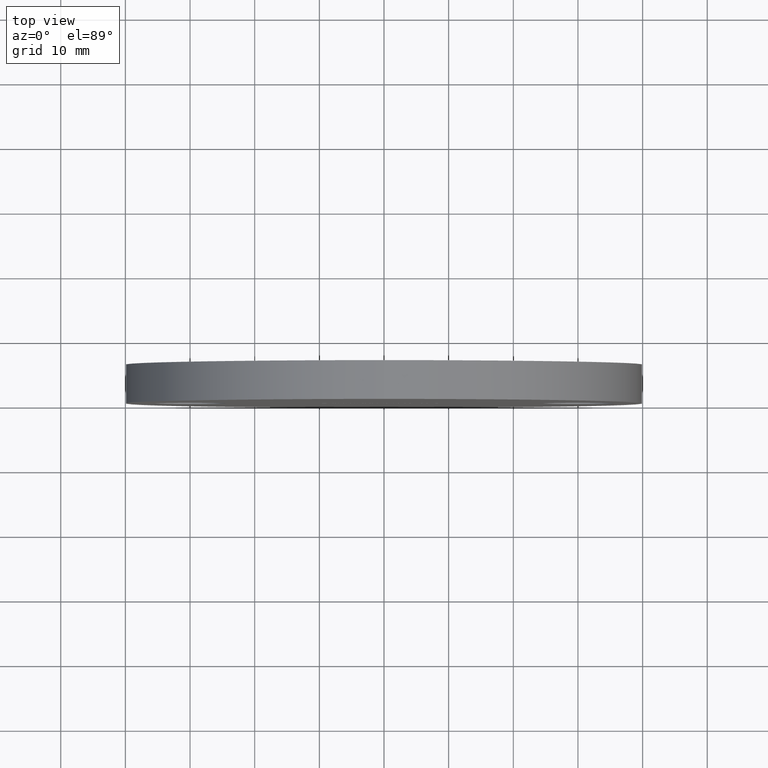
[diagram: clean part render]
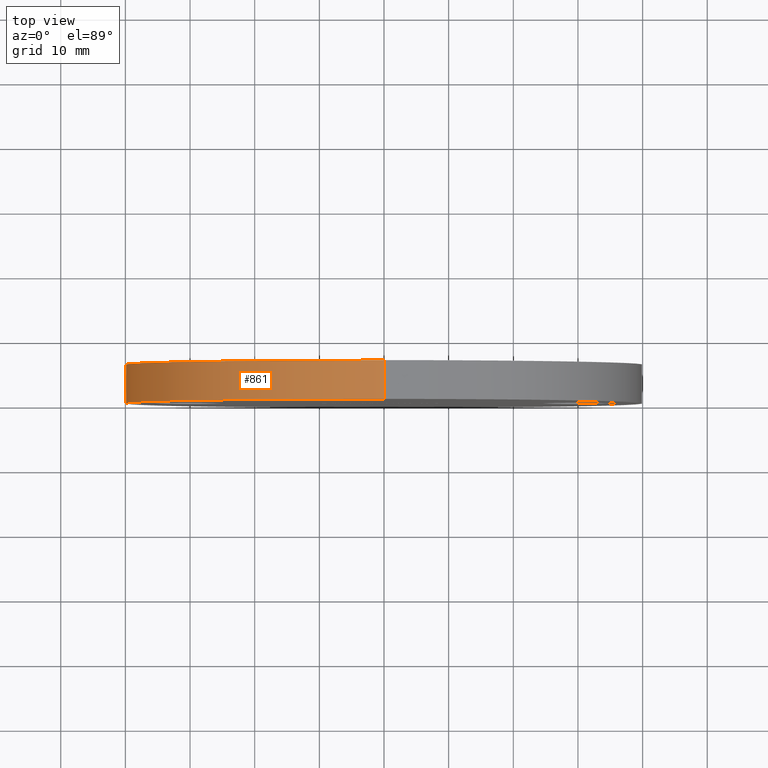
[diagram: same view with one face highlighted and labeled with its STEP entity id]
A machine part, top view. The second image highlights one B-rep face of the part: STEP entity #861.
In plain terms, the highlighted cylindrical surface (partial cylindrical patch) has radius 40 mm, axis along (-0, -1, -0).
Its self-contained STEP definition (entity closure, byte-faithful):
#356 = CARTESIAN_POINT ( 'NONE',  ( 0.0000000000000000000, 6.000000000000000000, -40.00000000000000000 ) ) ;
#499 = CARTESIAN_POINT ( 'NONE',  ( 0.0000000000000000000, 6.000000000000000000, -40.00000000000000000 ) ) ;
#861 = ADVANCED_FACE ( 'NONE', ( #4675 ), #11352, .T. ) ;
#1152 = CIRCLE ( 'NONE', #13087, 40.00000000000000000 ) ;
#1176 = EDGE_CURVE ( 'NONE', #8454, #10887, #10854, .T. ) ;
#1481 = VERTEX_POINT ( 'NONE', #6303 ) ;
#1550 = DIRECTION ( 'NONE',  ( -0.0000000000000000000, -1.000000000000000000, -0.0000000000000000000 ) ) ;
#1561 = LINE ( 'NONE', #2567, #11723 ) ;
#1784 = EDGE_CURVE ( 'NONE', #10887, #1481, #2455, .T. ) ;
#2455 = CIRCLE ( 'NONE', #2717, 40.00000000000000000 ) ;
#2467 = AXIS2_PLACEMENT_3D ( 'NONE', #6490, #9443, #5414 ) ;
#2567 = CARTESIAN_POINT ( 'NONE',  ( 4.898587196589413000E-015, 6.000000000000000000, 40.00000000000000000 ) ) ;
#2717 = AXIS2_PLACEMENT_3D ( 'NONE', #10206, #13104, #6076 ) ;
#3383 = ORIENTED_EDGE ( 'NONE', *, *, #3501, .F. ) ;
#3501 = EDGE_CURVE ( 'NONE', #8454, #12418, #1152, .T. ) ;
#4675 = FACE_OUTER_BOUND ( 'NONE', #11814, .T. ) ;
#5414 = DIRECTION ( 'NONE',  ( 0.0000000000000000000, 0.0000000000000000000, -1.000000000000000000 ) ) ;
#5901 = CARTESIAN_POINT ( 'NONE',  ( 0.0000000000000000000, 0.0000000000000000000, -40.00000000000000000 ) ) ;
#6076 = DIRECTION ( 'NONE',  ( 0.0000000000000000000, 0.0000000000000000000, 1.000000000000000000 ) ) ;
#6303 = CARTESIAN_POINT ( 'NONE',  ( 4.898587196589413000E-015, 0.0000000000000000000, 40.00000000000000000 ) ) ;
#6454 = DIRECTION ( 'NONE',  ( 0.0000000000000000000, 0.0000000000000000000, 1.000000000000000000 ) ) ;
#6490 = CARTESIAN_POINT ( 'NONE',  ( 0.0000000000000000000, 6.000000000000000000, 0.0000000000000000000 ) ) ;
#7280 = EDGE_CURVE ( 'NONE', #12418, #1481, #1561, .T. ) ;
#8011 = VECTOR ( 'NONE', #1550, 1000.000000000000000 ) ;
#8454 = VERTEX_POINT ( 'NONE', #356 ) ;
#9443 = DIRECTION ( 'NONE',  ( -0.0000000000000000000, -1.000000000000000000, -0.0000000000000000000 ) ) ;
#9907 = ORIENTED_EDGE ( 'NONE', *, *, #1784, .T. ) ;
#10120 = ORIENTED_EDGE ( 'NONE', *, *, #7280, .F. ) ;
#10206 = CARTESIAN_POINT ( 'NONE',  ( 0.0000000000000000000, 0.0000000000000000000, 0.0000000000000000000 ) ) ;
#10657 = ORIENTED_EDGE ( 'NONE', *, *, #1176, .T. ) ;
#10854 = LINE ( 'NONE', #499, #8011 ) ;
#10887 = VERTEX_POINT ( 'NONE', #5901 ) ;
#11352 = CYLINDRICAL_SURFACE ( 'NONE', #2467, 40.00000000000000000 ) ;
#11477 = CARTESIAN_POINT ( 'NONE',  ( 4.898587196589413000E-015, 6.000000000000000000, 40.00000000000000000 ) ) ;
#11723 = VECTOR ( 'NONE', #12712, 1000.000000000000000 ) ;
#11814 = EDGE_LOOP ( 'NONE', ( #10120, #3383, #10657, #9907 ) ) ;
#12418 = VERTEX_POINT ( 'NONE', #11477 ) ;
#12512 = DIRECTION ( 'NONE',  ( 0.0000000000000000000, 1.000000000000000000, 0.0000000000000000000 ) ) ;
#12712 = DIRECTION ( 'NONE',  ( -0.0000000000000000000, -1.000000000000000000, -0.0000000000000000000 ) ) ;
#12767 = CARTESIAN_POINT ( 'NONE',  ( 0.0000000000000000000, 6.000000000000000000, 0.0000000000000000000 ) ) ;
#13087 = AXIS2_PLACEMENT_3D ( 'NONE', #12767, #12512, #6454 ) ;
#13104 = DIRECTION ( 'NONE',  ( 0.0000000000000000000, 1.000000000000000000, 0.0000000000000000000 ) ) ;